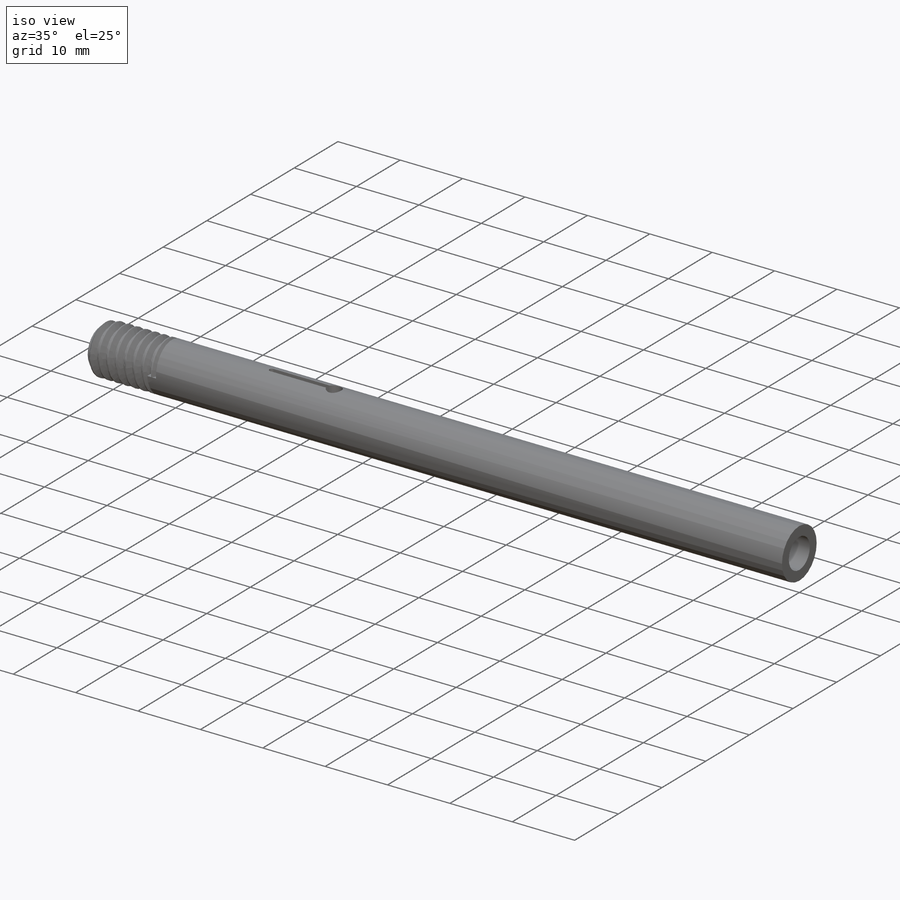
[diagram: iso view]
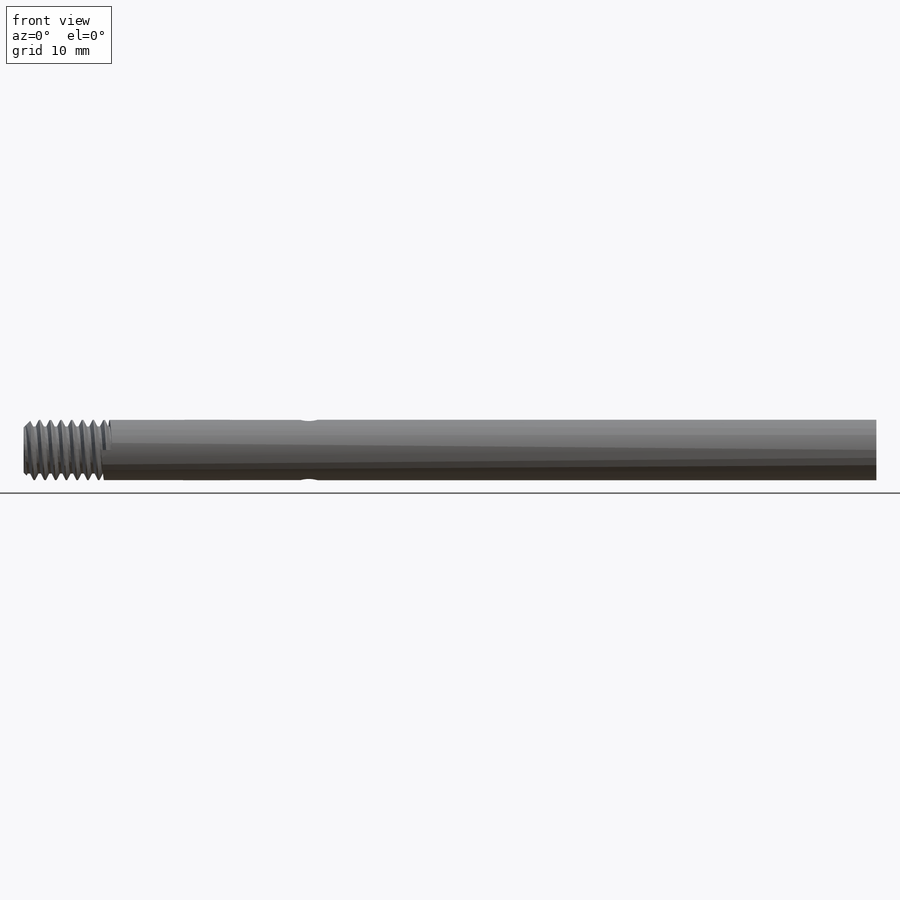
[diagram: front view]
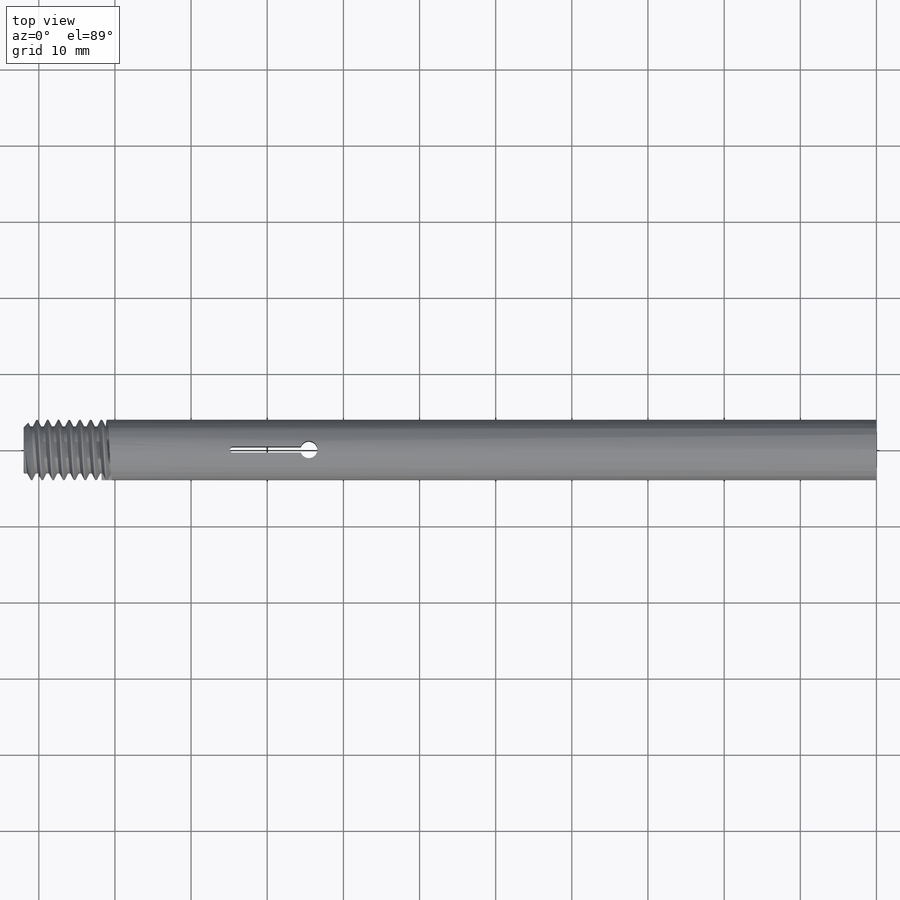
[diagram: top view]
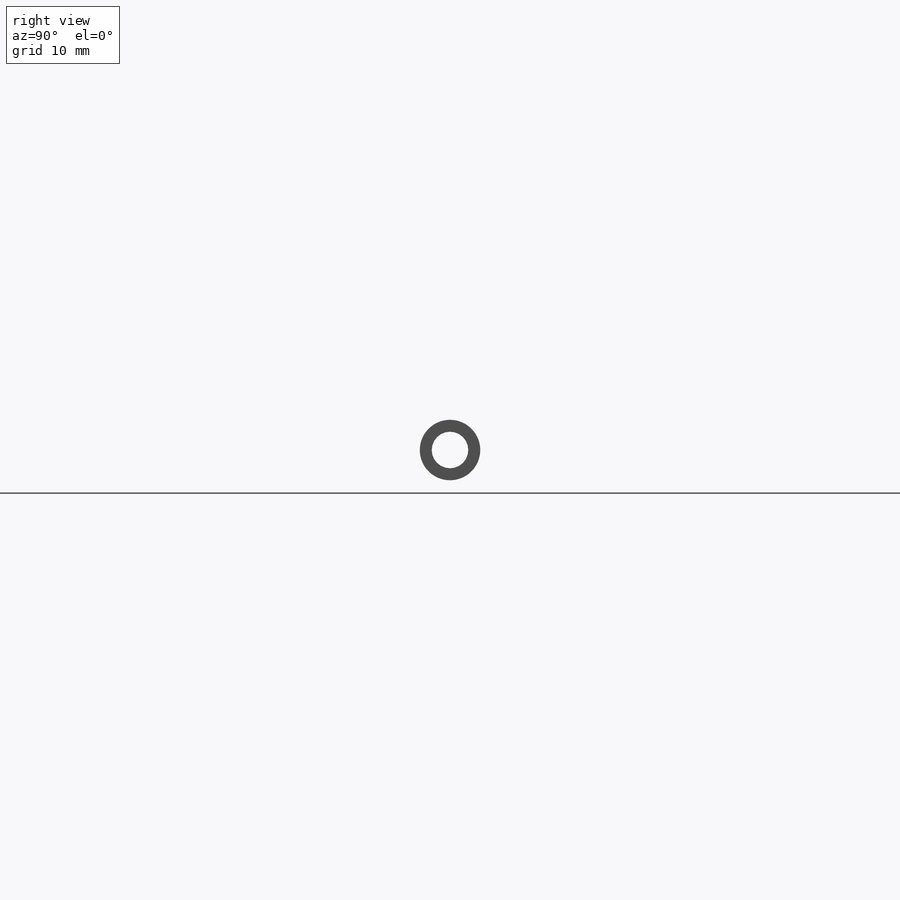
[diagram: right view]
SOLIDWORKS PART (.sldprt)
format: sldprt  version: not decoded by parser v0  size: 408,064 bytes
history: native  units: mm
features: sketch x7, extrude x2, cut_extrude x2, material x1, helix x1, chamfer x1, sweep x1 (+14 scaffold rows collapsed; 1 parser-record rows omitted)
feature tree (30):
  scaffold x14  (default folders/planes/origin — collapsed)
  material  "Material <not specified>"
  sketch  "Sketch2"  dims[D1=7.9375mm D2=4.5mm]
  extrude  "Body"  Depth=100mm
  parser-record x1  (decoder bookkeeping rows leaked as tree rows — omitted from the tree; the rows remain in map.json)
  sketch  "Sketch5"  dims[D1=7.9375mm]
  extrude  "Nose"  Depth=12mm
  sketch  "Sketch7"  dims[D1=3.1mm D2=0.09mm D3=0.18mm D4=0.71mm]
  sketch  "Sketch8"
  helix  "Helix/Spiral1"  Pitch=11.985mm
  chamfer  "Chamfer1"  Distance=1mm Angle=45deg
  sketch  "Sketch10"  dims[D1=4.8mm]
  cut_extrude  "Cut-Extrude3"  [1 undecoded]
  sweep  "Cut-Sweep1"
  sketch  "Sketch11"  dims[c1.D1=~0.396875mm c1.D2=2.2606mm c2.D1=~26.73507mm c2.D3=10.0mm]
  sketch  "Sketch13"
  cut_extrude  "Cut-Extrude4"  Depth=10mm
decode coverage: 10 of 14 modeling features carry decoded parameters
note: ~ marks probable driven/reference dimensions
note: 1 parameter value undecoded
note: suppression state not decoded; provenance and decode notes live in map.json
